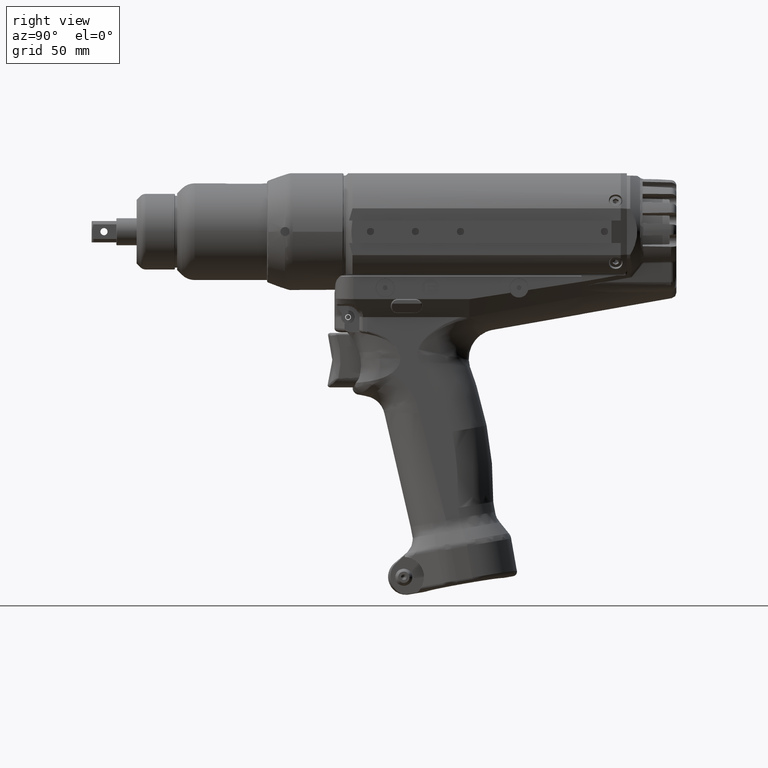
[diagram: clean part render]
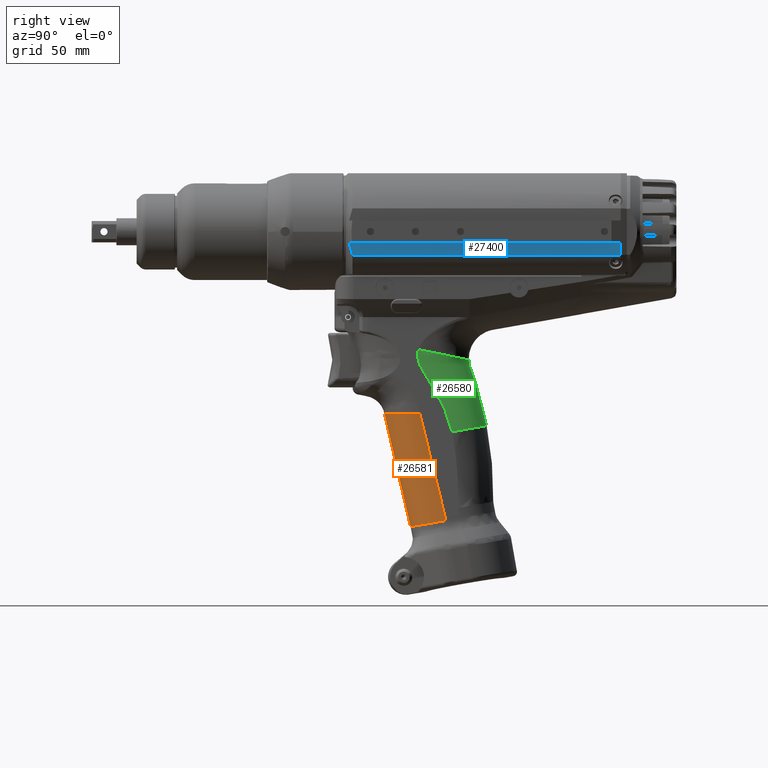
[diagram: same view with three faces highlighted in distinct colors, each labeled with its STEP entity id]
A machine part, right view with three faces highlighted in distinct colors.
Their STEP definitions:

[orange] entity #26581 — the highlighted face is a freeform B-spline surface patch.
#2268=B_SPLINE_SURFACE_WITH_KNOTS('',3,3,((#49000,#49001,#49002,#49003,
#49004,#49005,#49006,#49007,#49008,#49009),(#49010,#49011,#49012,#49013,
#49014,#49015,#49016,#49017,#49018,#49019),(#49020,#49021,#49022,#49023,
#49024,#49025,#49026,#49027,#49028,#49029),(#49030,#49031,#49032,#49033,
#49034,#49035,#49036,#49037,#49038,#49039)),.UNSPECIFIED.,.F.,.F.,.F.,(4,
4),(4,1,1,1,1,1,1,4),(6.18932721384576,59.3048513845876),(0.,1.,2.,3.,4.,
5.,6.,6.98580711094933),.UNSPECIFIED.);
#2790=FACE_OUTER_BOUND('',#4282,.T.);
#4282=EDGE_LOOP('',(#18154,#18155,#18156,#18157,#18158));
#5933=B_SPLINE_CURVE_WITH_KNOTS('',3,(#42523,#42524,#42525,#42526,#42527,
#42528,#42529,#42530,#42531,#42532),.UNSPECIFIED.,.F.,.F.,(4,3,3,4),(-6.48301901123684,
-4.86226425828379,-3.24150950533072,0.),.UNSPECIFIED.);
#6022=B_SPLINE_CURVE_WITH_KNOTS('',3,(#47385,#47386,#47387,#47388,#47389,
#47390,#47391,#47392,#47393,#47394,#47395,#47396,#47397,#47398,#47399,#47400,
#47401,#47402,#47403,#47404,#47405,#47406,#47407,#47408,#47409,#47410,#47411,
#47412,#47413,#47414,#47415),.UNSPECIFIED.,.F.,.F.,(4,3,3,3,3,3,3,3,3,3,
4),(-19.4136932267682,-16.9869815734223,-14.5602699200763,-13.3469140934034,
-12.1335582667304,-9.7068466133845,-7.28013496003857,-6.06677913336561,
-4.85342330669265,-2.42671165334672,-0.310536262625408),.UNSPECIFIED.);
#6033=B_SPLINE_CURVE_WITH_KNOTS('',3,(#48493,#48494,#48495,#48496,#48497,
#48498,#48499,#48500,#48501,#48502,#48503,#48504,#48505,#48506,#48507,#48508,
#48509,#48510,#48511,#48512,#48513,#48514,#48515,#48516,#48517,#48518,#48519,
#48520),.UNSPECIFIED.,.F.,.F.,(4,3,3,3,3,3,3,3,3,4),(-23.9684616606429,
-21.2322941278046,-19.715701690104,-18.1991092524035,-15.1659243770024,
-12.1327395016012,-9.09955462620011,-6.06636975079899,-3.03318487539785,
0.),.UNSPECIFIED.);
#6037=B_SPLINE_CURVE_WITH_KNOTS('',3,(#49040,#49041,#49042,#49043,#49044,
#49045,#49046),.UNSPECIFIED.,.F.,.F.,(4,3,4),(-51.8323816279323,-8.32192835380557,
-0.015886336177395),.UNSPECIFIED.);
#7196=LINE('',#44803,#8749);
#8749=VECTOR('',#31419,10.);
#10587=VERTEX_POINT('',#42328);
#10595=VERTEX_POINT('',#42522);
#10645=VERTEX_POINT('',#44741);
#10684=VERTEX_POINT('',#47384);
#10697=VERTEX_POINT('',#48486);
#13411=EDGE_CURVE('',#10587,#10595,#5933,.T.);
#13480=EDGE_CURVE('',#10645,#10587,#7196,.T.);
#13545=EDGE_CURVE('',#10595,#10684,#6022,.T.);
#13568=EDGE_CURVE('',#10697,#10645,#6033,.T.);
#13572=EDGE_CURVE('',#10697,#10684,#6037,.T.);
#18154=ORIENTED_EDGE('',*,*,#13572,.T.);
#18155=ORIENTED_EDGE('',*,*,#13545,.F.);
#18156=ORIENTED_EDGE('',*,*,#13411,.F.);
#18157=ORIENTED_EDGE('',*,*,#13480,.F.);
#18158=ORIENTED_EDGE('',*,*,#13568,.F.);
#26581=ADVANCED_FACE('',(#2790),#2268,.F.);
#31419=DIRECTION('',(0.0105560679108472,0.23820207209503,-0.971158247805112));
#42328=CARTESIAN_POINT('',(15.9825582871778,137.56783920862,-128.395362420582));
#42522=CARTESIAN_POINT('',(14.7580043873871,131.420744753785,-129.479388351292));
#42523=CARTESIAN_POINT('Ctrl Pts',(15.982558287175,137.56783920862,-128.395362420582));
#42524=CARTESIAN_POINT('Ctrl Pts',(15.9836179425201,137.04231765315,-128.48802604962));
#42525=CARTESIAN_POINT('Ctrl Pts',(15.9593946880316,136.51675699678,-128.580704521699));
#42526=CARTESIAN_POINT('Ctrl Pts',(15.9097596218973,135.99352375774,-128.672976584782));
#42527=CARTESIAN_POINT('Ctrl Pts',(15.8601245557629,135.470290518701,-128.765248647864));
#42528=CARTESIAN_POINT('Ctrl Pts',(15.7849338151475,134.94938256942,-128.857114679171));
#42529=CARTESIAN_POINT('Ctrl Pts',(15.6835244767369,134.43344322011,-128.948104616164));
#42530=CARTESIAN_POINT('Ctrl Pts',(15.4807057999517,133.401564521674,-129.130084490118));
#42531=CARTESIAN_POINT('Ctrl Pts',(15.1700841761262,132.39026535769,-129.308435671873));
#42532=CARTESIAN_POINT('Ctrl Pts',(14.7580043874603,131.420744753957,-129.479388351263));
#44741=CARTESIAN_POINT('',(15.4639503978983,125.865236035306,-80.6834366065205));
#44803=CARTESIAN_POINT('',(15.4639503978983,125.865236035306,-80.6834366065205));
#47384=CARTESIAN_POINT('',(0.299999986565637,121.818883364401,-131.172330684969));
#47385=CARTESIAN_POINT('Ctrl Pts',(14.7580043872409,131.42074475344,-129.479388351351));
#47386=CARTESIAN_POINT('Ctrl Pts',(14.4564132780039,130.710704199285,-129.604583011414));
#47387=CARTESIAN_POINT('Ctrl Pts',(14.1010899634867,130.022795701002,-129.725874959367));
#47388=CARTESIAN_POINT('Ctrl Pts',(13.6966438285991,129.364198842186,-129.841998297377));
#47389=CARTESIAN_POINT('Ctrl Pts',(13.2921976937114,128.70560198337,-129.958121635387));
#47390=CARTESIAN_POINT('Ctrl Pts',(12.8387343871392,128.076190164966,-130.069098686406));
#47391=CARTESIAN_POINT('Ctrl Pts',(12.3399946881338,127.483548122102,-130.173592109945));
#47392=CARTESIAN_POINT('Ctrl Pts',(12.0906248386312,127.18722710067,-130.225838821715));
#47393=CARTESIAN_POINT('Ctrl Pts',(11.8301928924037,126.900054256253,-130.276472433429));
#47394=CARTESIAN_POINT('Ctrl Pts',(11.5592106494204,126.622739186845,-130.325367829726));
#47395=CARTESIAN_POINT('Ctrl Pts',(11.288228406437,126.345424117437,-130.374263226023));
#47396=CARTESIAN_POINT('Ctrl Pts',(11.0069441553658,126.07794213954,-130.421424760657));
#47397=CARTESIAN_POINT('Ctrl Pts',(10.7159982363612,125.821032710089,-130.466722054396));
#47398=CARTESIAN_POINT('Ctrl Pts',(10.1341063983519,125.307213851186,-130.557316641874));
#47399=CARTESIAN_POINT('Ctrl Pts',(9.51346485173847,124.836019031778,-130.640395400639));
#47400=CARTESIAN_POINT('Ctrl Pts',(8.86098497463106,124.412307295903,-130.715101611402));
#47401=CARTESIAN_POINT('Ctrl Pts',(8.20850509752364,123.988595560027,-130.789807822164));
#47402=CARTESIAN_POINT('Ctrl Pts',(7.52440136805793,123.612218244593,-130.856167698885));
#47403=CARTESIAN_POINT('Ctrl Pts',(6.81598706661467,123.287086403167,-130.913491676911));
#47404=CARTESIAN_POINT('Ctrl Pts',(6.46177991589304,123.124520482454,-130.942153665924));
#47405=CARTESIAN_POINT('Ctrl Pts',(6.10157030157636,122.974790792942,-130.96855229687));
#47406=CARTESIAN_POINT('Ctrl Pts',(5.7361897840397,122.838267466812,-130.992622311816));
#47407=CARTESIAN_POINT('Ctrl Pts',(5.37080926650304,122.701744140682,-131.016692326763));
#47408=CARTESIAN_POINT('Ctrl Pts',(5.00032794004954,122.578540580415,-131.038413730641));
#47409=CARTESIAN_POINT('Ctrl Pts',(4.62576113898575,122.468944714023,-131.057735761122));
#47410=CARTESIAN_POINT('Ctrl Pts',(3.87662753685817,122.249752981239,-131.096379822086));
#47411=CARTESIAN_POINT('Ctrl Pts',(3.1106772334413,122.085988801865,-131.125250631912));
#47412=CARTESIAN_POINT('Ctrl Pts',(2.33692256675379,121.977917964722,-131.144301380163));
#47413=CARTESIAN_POINT('Ctrl Pts',(1.66218208745448,121.883676506037,-131.160914282882));
#47414=CARTESIAN_POINT('Ctrl Pts',(0.981404978026226,121.830928268565,-131.170210941981));
#47415=CARTESIAN_POINT('Ctrl Pts',(0.29999997322206,121.818883724865,-131.17233060175));
#48486=CARTESIAN_POINT('',(0.299999864935906,110.162062187546,-80.6834273257872));
#48493=CARTESIAN_POINT('Ctrl Pts',(0.299999864935906,110.162062187546,-80.6834273257872));
#48494=CARTESIAN_POINT('Ctrl Pts',(1.22119265919352,110.177138749751,-80.6834276602243));
#48495=CARTESIAN_POINT('Ctrl Pts',(2.14163923726857,110.267942099335,-80.6834278991349));
#48496=CARTESIAN_POINT('Ctrl Pts',(3.04619781146866,110.443339721386,-80.6834280686938));
#48497=CARTESIAN_POINT('Ctrl Pts',(3.54757306595317,110.540558442097,-80.6834281626763));
#48498=CARTESIAN_POINT('Ctrl Pts',(4.04377836317919,110.664388196257,-80.6834282348273));
#48499=CARTESIAN_POINT('Ctrl Pts',(4.53205493434953,110.81384066634,-80.6834282918093));
#48500=CARTESIAN_POINT('Ctrl Pts',(5.02033150551987,110.963293136422,-80.6834283487914));
#48501=CARTESIAN_POINT('Ctrl Pts',(5.5009676226065,111.13817230396,-80.6834283911004));
#48502=CARTESIAN_POINT('Ctrl Pts',(5.97137758340928,111.336897953607,-80.6834284257209));
#48503=CARTESIAN_POINT('Ctrl Pts',(6.91219750501482,111.734349252901,-80.6834284949621));
#48504=CARTESIAN_POINT('Ctrl Pts',(7.81296904428305,112.226746803236,-80.6834285346034));
#48505=CARTESIAN_POINT('Ctrl Pts',(8.65566306731196,112.803889079288,-80.6834285958999));
#48506=CARTESIAN_POINT('Ctrl Pts',(9.49835709034089,113.38103135534,-80.6834286571964));
#48507=CARTESIAN_POINT('Ctrl Pts',(10.2821579216292,114.043821948717,-80.6834287396975));
#48508=CARTESIAN_POINT('Ctrl Pts',(10.9940374471896,114.776180912577,-80.6834288940532));
#48509=CARTESIAN_POINT('Ctrl Pts',(11.7059169727499,115.508539876437,-80.683429048409));
#48510=CARTESIAN_POINT('Ctrl Pts',(12.3455356181498,116.311194721754,-80.6834292744782));
#48511=CARTESIAN_POINT('Ctrl Pts',(12.9005609593443,117.168634052617,-80.6834296151552));
#48512=CARTESIAN_POINT('Ctrl Pts',(13.4555863005388,118.026073383479,-80.6834299558323));
#48513=CARTESIAN_POINT('Ctrl Pts',(13.9281019868943,118.936779035087,-80.6834304122799));
#48514=CARTESIAN_POINT('Ctrl Pts',(14.3093168097327,119.884395087229,-80.6834310181497));
#48515=CARTESIAN_POINT('Ctrl Pts',(14.690531632571,120.832011139371,-80.6834316240195));
#48516=CARTESIAN_POINT('Ctrl Pts',(14.9791245019431,121.816689511693,-80.6834323795946));
#48517=CARTESIAN_POINT('Ctrl Pts',(15.1719144158077,122.819684516162,-80.6834333064905));
#48518=CARTESIAN_POINT('Ctrl Pts',(15.364704329672,123.822679520629,-80.6834342333863));
#48519=CARTESIAN_POINT('Ctrl Pts',(15.4637990304035,124.843856271045,-80.6834353315417));
#48520=CARTESIAN_POINT('Ctrl Pts',(15.4639503978983,125.865236035306,-80.6834366065201));
#49000=CARTESIAN_POINT('Ctrl Pts',(15.4314594744026,125.132064804669,-77.6942716449368));
#49001=CARTESIAN_POINT('Ctrl Pts',(15.433561842498,123.998118751059,-77.8876895097136));
#49002=CARTESIAN_POINT('Ctrl Pts',(15.1679206120768,121.711344763125,-78.276035536444));
#49003=CARTESIAN_POINT('Ctrl Pts',(14.0297554434304,118.5203420211,-78.8135498505691));
#49004=CARTESIAN_POINT('Ctrl Pts',(12.1715831929763,115.605345644869,-79.2996621685889));
#49005=CARTESIAN_POINT('Ctrl Pts',(9.6701386326624,113.166211357487,-79.7007310331564));
#49006=CARTESIAN_POINT('Ctrl Pts',(6.72762038053957,111.376932785556,-79.9885858677609));
#49007=CARTESIAN_POINT('Ctrl Pts',(3.47426618170764,110.272364011691,-80.1578291050225));
#49008=CARTESIAN_POINT('Ctrl Pts',(1.18087065599422,110.045844881713,-80.1829956592748));
#49009=CARTESIAN_POINT('Ctrl Pts',(0.0488880631524969,110.042860328665,
-80.1768412995748));
#49010=CARTESIAN_POINT('Ctrl Pts',(15.6210933346677,129.411231899441,-95.1405867893321));
#49011=CARTESIAN_POINT('Ctrl Pts',(15.6230302236222,128.256820541898,-95.3187805731417));
#49012=CARTESIAN_POINT('Ctrl Pts',(15.3627156754217,125.927485011103,-95.6716050561516));
#49013=CARTESIAN_POINT('Ctrl Pts',(14.2152537135964,122.671714144473,-96.1481023922062));
#49014=CARTESIAN_POINT('Ctrl Pts',(12.3369560272959,119.695376717003,-96.5650954123669));
#49015=CARTESIAN_POINT('Ctrl Pts',(9.80693994291988,117.20093399807,-96.8930978409875));
#49016=CARTESIAN_POINT('Ctrl Pts',(6.8247828451491,115.362682439395,-97.1106655846705));
#49017=CARTESIAN_POINT('Ctrl Pts',(3.5252751148459,114.220563723143,-97.2139046381532));
#49018=CARTESIAN_POINT('Ctrl Pts',(1.19849471066287,113.976534674125,-97.2002597254632));
#49019=CARTESIAN_POINT('Ctrl Pts',(0.0496179493162189,113.967568340911,
-97.1762767400641));
#49020=CARTESIAN_POINT('Ctrl Pts',(15.8107287195955,133.690433398843,-112.587042202641));
#49021=CARTESIAN_POINT('Ctrl Pts',(15.812501568073,132.514264078167,-112.750144262572));
#49022=CARTESIAN_POINT('Ctrl Pts',(15.5557196069803,130.141487800437,-113.067561297025));
#49023=CARTESIAN_POINT('Ctrl Pts',(14.394150968327,126.813887276112,-113.483472554788));
#49024=CARTESIAN_POINT('Ctrl Pts',(12.4940308752058,123.78076003112,-113.830833089394));
#49025=CARTESIAN_POINT('Ctrl Pts',(9.94515068078317,121.241044008171,-114.085537223452));
#49026=CARTESIAN_POINT('Ctrl Pts',(6.92139778519224,119.350126450284,-114.232966606496));
#49027=CARTESIAN_POINT('Ctrl Pts',(3.57393511686094,118.170974381462,-114.26989869948));
#49028=CARTESIAN_POINT('Ctrl Pts',(1.21573223276537,117.905714399368,-114.217843945491));
#49029=CARTESIAN_POINT('Ctrl Pts',(0.0503321952917459,117.892242084367,
-114.175856672276));
#49030=CARTESIAN_POINT('Ctrl Pts',(16.0003637013329,137.96962580009,-130.033460522445));
#49031=CARTESIAN_POINT('Ctrl Pts',(16.0019712146189,136.77134572308,-130.181351744753));
#49032=CARTESIAN_POINT('Ctrl Pts',(15.7502254994935,134.35449017358,-130.463600680171));
#49033=CARTESIAN_POINT('Ctrl Pts',(14.5760126653354,130.95500817772,-130.818662812572));
#49034=CARTESIAN_POINT('Ctrl Pts',(12.6546750740438,127.86414133154,-131.096649539636));
#49035=CARTESIAN_POINT('Ctrl Pts',(10.085698691626,125.27811688381,-131.278740149826));
#49036=CARTESIAN_POINT('Ctrl Pts',(7.02017381899577,123.33534941197,-131.35572721669));
#49037=CARTESIAN_POINT('Ctrl Pts',(3.62412924527971,122.119889679581,-131.326162407783));
#49038=CARTESIAN_POINT('Ctrl Pts',(1.23349146811626,121.834611585261,-131.23540769398));
#49039=CARTESIAN_POINT('Ctrl Pts',(0.0510680400675933,121.816896334802,
-131.175401034218));
#49040=CARTESIAN_POINT('Ctrl Pts',(0.299999476740887,110.162047485856,-80.6834307179722));
#49041=CARTESIAN_POINT('Ctrl Pts',(0.299999951577888,113.42504467527,-94.8153996615566));
#49042=CARTESIAN_POINT('Ctrl Pts',(0.29999859502052,116.687784985857,-108.947344672117));
#49043=CARTESIAN_POINT('Ctrl Pts',(0.299999634393999,119.950411695777,-123.079157733855));
#49044=CARTESIAN_POINT('Ctrl Pts',(0.299999832807923,120.573239372834,-125.776887227422));
#49045=CARTESIAN_POINT('Ctrl Pts',(0.299999997105858,121.196062841449,-128.474611851533));
#49046=CARTESIAN_POINT('Ctrl Pts',(0.2999999864768,121.818883004271,-131.172330768112));

[blue] entity #27400 — the highlighted planar face has unit normal (1, -0, 0).
#1540=(
BOUNDED_CURVE()
B_SPLINE_CURVE(2,(#73259,#73260,#73261),.UNSPECIFIED.,.F.,.F.)
B_SPLINE_CURVE_WITH_KNOTS((3,3),(3.13259549620399,3.76754975221742),
 .UNSPECIFIED.)
CURVE()
GEOMETRIC_REPRESENTATION_ITEM()
RATIONAL_B_SPLINE_CURVE((1.16242719898379,1.15156642127415,1.12962962962963))
REPRESENTATION_ITEM('')
);
#2017=PLANE('',#29635);
#3609=FACE_OUTER_BOUND('',#5165,.T.);
#5165=EDGE_LOOP('',(#22638,#22639,#22640,#22641));
#8040=LINE('',#73214,#9593);
#8042=LINE('',#73256,#9595);
#8043=LINE('',#73258,#9596);
#9593=VECTOR('',#34967,10.);
#9595=VECTOR('',#34975,10.);
#9596=VECTOR('',#34976,10.);
#12126=VERTEX_POINT('',#73211);
#12127=VERTEX_POINT('',#73213);
#12132=VERTEX_POINT('',#73255);
#12133=VERTEX_POINT('',#73257);
#15809=EDGE_CURVE('',#12127,#12126,#8040,.T.);
#15815=EDGE_CURVE('',#12126,#12132,#8042,.T.);
#15816=EDGE_CURVE('',#12133,#12132,#8043,.T.);
#15817=EDGE_CURVE('',#12133,#12127,#1540,.T.);
#22638=ORIENTED_EDGE('',*,*,#15815,.T.);
#22639=ORIENTED_EDGE('',*,*,#15816,.F.);
#22640=ORIENTED_EDGE('',*,*,#15817,.T.);
#22641=ORIENTED_EDGE('',*,*,#15809,.T.);
#27400=ADVANCED_FACE('',(#3609),#2017,.T.);
#29635=AXIS2_PLACEMENT_3D('',#73254,#34973,#34974);
#34967=DIRECTION('',(2.20483306713371E-17,1.,2.35171747994582E-17));
#34973=DIRECTION('center_axis',(1.,-2.20483306713371E-17,0.));
#34974=DIRECTION('ref_axis',(0.,2.35171747994582E-17,-1.));
#34975=DIRECTION('',(0.,-2.35171747994582E-17,1.));
#34976=DIRECTION('',(2.20483306713371E-17,1.,2.35171747994582E-17));
#73211=CARTESIAN_POINT('',(26.,215.252522580545,-10.3923048454133));
#73213=CARTESIAN_POINT('',(26.,96.,-10.3923048454133));
#73214=CARTESIAN_POINT('',(26.,80.5,-10.3923048454133));
#73254=CARTESIAN_POINT('Origin',(26.,80.5,-5.00000000000001));
#73255=CARTESIAN_POINT('',(26.,215.252522580545,-5.));
#73256=CARTESIAN_POINT('',(26.,215.252522580545,-2.5));
#73257=CARTESIAN_POINT('',(26.,94.4764045897475,-5.00000000000001));
#73258=CARTESIAN_POINT('',(26.,80.5,-5.00000000000001));
#73259=CARTESIAN_POINT('Ctrl Pts',(26.,94.4764045897475,-5.00000000000001));
#73260=CARTESIAN_POINT('Ctrl Pts',(26.,94.9713257290941,-7.62074646507204));
#73261=CARTESIAN_POINT('Ctrl Pts',(26.,96.,-10.3923048454133));

[green] entity #26580 — the highlighted face is a freeform B-spline surface patch.
#2267=B_SPLINE_SURFACE_WITH_KNOTS('',3,3,((#48670,#48671,#48672,#48673,
#48674,#48675,#48676,#48677,#48678,#48679),(#48680,#48681,#48682,#48683,
#48684,#48685,#48686,#48687,#48688,#48689),(#48690,#48691,#48692,#48693,
#48694,#48695,#48696,#48697,#48698,#48699),(#48700,#48701,#48702,#48703,
#48704,#48705,#48706,#48707,#48708,#48709),(#48710,#48711,#48712,#48713,
#48714,#48715,#48716,#48717,#48718,#48719),(#48720,#48721,#48722,#48723,
#48724,#48725,#48726,#48727,#48728,#48729),(#48730,#48731,#48732,#48733,
#48734,#48735,#48736,#48737,#48738,#48739),(#48740,#48741,#48742,#48743,
#48744,#48745,#48746,#48747,#48748,#48749),(#48750,#48751,#48752,#48753,
#48754,#48755,#48756,#48757,#48758,#48759),(#48760,#48761,#48762,#48763,
#48764,#48765,#48766,#48767,#48768,#48769),(#48770,#48771,#48772,#48773,
#48774,#48775,#48776,#48777,#48778,#48779),(#48780,#48781,#48782,#48783,
#48784,#48785,#48786,#48787,#48788,#48789),(#48790,#48791,#48792,#48793,
#48794,#48795,#48796,#48797,#48798,#48799),(#48800,#48801,#48802,#48803,
#48804,#48805,#48806,#48807,#48808,#48809),(#48810,#48811,#48812,#48813,
#48814,#48815,#48816,#48817,#48818,#48819),(#48820,#48821,#48822,#48823,
#48824,#48825,#48826,#48827,#48828,#48829),(#48830,#48831,#48832,#48833,
#48834,#48835,#48836,#48837,#48838,#48839),(#48840,#48841,#48842,#48843,
#48844,#48845,#48846,#48847,#48848,#48849),(#48850,#48851,#48852,#48853,
#48854,#48855,#48856,#48857,#48858,#48859),(#48860,#48861,#48862,#48863,
#48864,#48865,#48866,#48867,#48868,#48869),(#48870,#48871,#48872,#48873,
#48874,#48875,#48876,#48877,#48878,#48879),(#48880,#48881,#48882,#48883,
#48884,#48885,#48886,#48887,#48888,#48889),(#48890,#48891,#48892,#48893,
#48894,#48895,#48896,#48897,#48898,#48899),(#48900,#48901,#48902,#48903,
#48904,#48905,#48906,#48907,#48908,#48909),(#48910,#48911,#48912,#48913,
#48914,#48915,#48916,#48917,#48918,#48919),(#48920,#48921,#48922,#48923,
#48924,#48925,#48926,#48927,#48928,#48929),(#48930,#48931,#48932,#48933,
#48934,#48935,#48936,#48937,#48938,#48939),(#48940,#48941,#48942,#48943,
#48944,#48945,#48946,#48947,#48948,#48949),(#48950,#48951,#48952,#48953,
#48954,#48955,#48956,#48957,#48958,#48959),(#48960,#48961,#48962,#48963,
#48964,#48965,#48966,#48967,#48968,#48969),(#48970,#48971,#48972,#48973,
#48974,#48975,#48976,#48977,#48978,#48979),(#48980,#48981,#48982,#48983,
#48984,#48985,#48986,#48987,#48988,#48989)),.UNSPECIFIED.,.F.,.F.,.F.,(4,
2,2,2,2,2,2,2,2,2,2,2,2,2,2,4),(4,1,1,1,1,1,1,4),(0.,4.41197645880191,8.82395291760381,
13.2359293764057,17.6479058352076,22.0598822940095,24.2658705234105,26.4718587528114,
28.6778469822124,29.7808410969129,30.3323381542631,30.8838352116133,31.9868293263138,
33.0898234410143,34.1928175557148,35.2958357630949),(-5.28786258886457E-6,
1.,2.,3.,4.,5.,6.,7.),.UNSPECIFIED.);
#2789=FACE_OUTER_BOUND('',#4281,.T.);
#4281=EDGE_LOOP('',(#18149,#18150,#18151,#18152,#18153));
#5923=B_SPLINE_CURVE_WITH_KNOTS('',3,(#42141,#42142,#42143,#42144,#42145,
#42146,#42147,#42148,#42149,#42150,#42151,#42152,#42153,#42154,#42155,#42156,
#42157,#42158,#42159,#42160),.UNSPECIFIED.,.F.,.F.,(4,2,2,2,2,2,2,2,2,4),
(-6.8546789309067,-5.12935180490891,-4.41880186751197,-4.03366518010407,
-3.64852849269617,-3.14006944780411,-2.63161040291204,-1.77138653259447,
-0.918040733133623,0.),.UNSPECIFIED.);
#5990=B_SPLINE_CURVE_WITH_KNOTS('',3,(#44819,#44820,#44821,#44822,#44823,
#44824,#44825,#44826,#44827,#44828,#44829,#44830,#44831,#44832,#44833,#44834,
#44835,#44836,#44837,#44838),.UNSPECIFIED.,.F.,.F.,(4,2,2,2,2,2,2,2,2,4),
(2.41384233712228E-8,4.41197645880191,8.82395291760381,13.2359293764057,
17.6479058352076,22.0598822940095,24.2658705234105,26.4718587528114,28.6778469822124,
29.2621880037137),.UNSPECIFIED.);
#6007=B_SPLINE_CURVE_WITH_KNOTS('',3,(#46015,#46016,#46017,#46018,#46019,
#46020,#46021,#46022,#46023,#46024,#46025,#46026,#46027,#46028,#46029,#46030,
#46031,#46032,#46033,#46034,#46035,#46036,#46037,#46038,#46039,#46040,#46041,
#46042,#46043,#46044,#46045,#46046,#46047,#46048,#46049,#46050,#46051),
 .UNSPECIFIED.,.F.,.F.,(4,3,3,3,3,3,3,3,3,3,3,3,4),(0.0480513549656024,
3.07447194330146,4.6117079150337,6.14894388676594,9.22341583023041,12.2978877736949,
15.3723597171594,16.9095956888917,18.4468316606238,19.9840676323561,21.5213036040883,
23.0585395758206,24.3561840656064),.UNSPECIFIED.);
#6035=B_SPLINE_CURVE_WITH_KNOTS('',3,(#48648,#48649,#48650,#48651,#48652,
#48653,#48654,#48655,#48656,#48657,#48658,#48659,#48660,#48661,#48662,#48663,
#48664,#48665,#48666,#48667,#48668,#48669),.UNSPECIFIED.,.F.,.F.,(4,3,3,
3,3,3,3,4),(-6.91446055901153,-6.000005313668,-5.00001103419731,-4.00001536112901,
-3.00001686245994,-2.00001493082698,-1.00000920455593,0.),.UNSPECIFIED.);
#6036=B_SPLINE_CURVE_WITH_KNOTS('',3,(#48990,#48991,#48992,#48993,#48994,
#48995,#48996,#48997,#48998,#48999),.UNSPECIFIED.,.F.,.F.,(4,2,2,2,4),(2.59831827777823E-10,
1.52395814287799,2.28240439576014,2.92242067351702,4.41609453814139),
 .UNSPECIFIED.);
#10495=VERTEX_POINT('',#41184);
#10580=VERTEX_POINT('',#42124);
#10647=VERTEX_POINT('',#44806);
#10673=VERTEX_POINT('',#46014);
#10698=VERTEX_POINT('',#48641);
#13393=EDGE_CURVE('',#10580,#10495,#5923,.T.);
#13483=EDGE_CURVE('',#10647,#10580,#5990,.T.);
#13527=EDGE_CURVE('',#10495,#10673,#6007,.T.);
#13570=EDGE_CURVE('',#10698,#10647,#6035,.T.);
#13571=EDGE_CURVE('',#10698,#10673,#6036,.T.);
#18149=ORIENTED_EDGE('',*,*,#13527,.F.);
#18150=ORIENTED_EDGE('',*,*,#13393,.F.);
#18151=ORIENTED_EDGE('',*,*,#13483,.F.);
#18152=ORIENTED_EDGE('',*,*,#13570,.F.);
#18153=ORIENTED_EDGE('',*,*,#13571,.T.);
#26580=ADVANCED_FACE('',(#2789),#2267,.F.);
#41184=CARTESIAN_POINT('',(15.1538950371381,125.28560082875,-52.3735795472021));
#42124=CARTESIAN_POINT('',(15.2291780243094,125.775799653277,-59.0837872268992));
#42141=CARTESIAN_POINT('Ctrl Pts',(15.2291780243094,125.775799653277,-59.0837872268992));
#42142=CARTESIAN_POINT('Ctrl Pts',(15.2228336804988,125.542544384203,-58.5001559576342));
#42143=CARTESIAN_POINT('Ctrl Pts',(15.2149178749372,125.44270677713,-57.9716022056498));
#42144=CARTESIAN_POINT('Ctrl Pts',(15.2065027086334,125.223902265032,-57.1999555375353));
#42145=CARTESIAN_POINT('Ctrl Pts',(15.2035360135602,125.127436008383,-56.8766004002655));
#42146=CARTESIAN_POINT('Ctrl Pts',(15.1987135318331,125.038481266514,-56.4280919957255));
#42147=CARTESIAN_POINT('Ctrl Pts',(15.1970729733812,125.02169168003,-56.2939976711563));
#42148=CARTESIAN_POINT('Ctrl Pts',(15.1937251540071,124.99276155019,-56.0227400230662));
#42149=CARTESIAN_POINT('Ctrl Pts',(15.1921596396433,124.977277706316,-55.8850467700421));
#42150=CARTESIAN_POINT('Ctrl Pts',(15.1889068370211,124.938453080355,-55.5631014729656));
#42151=CARTESIAN_POINT('Ctrl Pts',(15.1870621017011,124.921433520386,-55.3763947434265));
#42152=CARTESIAN_POINT('Ctrl Pts',(15.184174263866,124.91467520509,-55.1246848743083));
#42153=CARTESIAN_POINT('Ctrl Pts',(15.182971676442,124.917776757873,-55.0320556784069));
#42154=CARTESIAN_POINT('Ctrl Pts',(15.1792172898816,124.921932858076,-54.7083587997986));
#42155=CARTESIAN_POINT('Ctrl Pts',(15.1758593720655,124.921152138825,-54.3652941013597));
#42156=CARTESIAN_POINT('Ctrl Pts',(15.1695995084683,124.967077030994,-53.7535328883022));
#42157=CARTESIAN_POINT('Ctrl Pts',(15.1664291137852,125.011215605194,-53.454265004044));
#42158=CARTESIAN_POINT('Ctrl Pts',(15.1606223119805,125.117513534487,-52.9296781164042));
#42159=CARTESIAN_POINT('Ctrl Pts',(15.1577615231876,125.181748158654,-52.6802264183385));
#42160=CARTESIAN_POINT('Ctrl Pts',(15.1538952108905,125.285600834716,-52.3735795493051));
#44806=CARTESIAN_POINT('',(15.5532677122156,140.221767082648,-88.931344681568));
#44819=CARTESIAN_POINT('Ctrl Pts',(15.5532677118705,140.22176707788,-88.9313446501061));
#44820=CARTESIAN_POINT('Ctrl Pts',(15.5353982433867,139.895841690867,-87.2858211063208));
#44821=CARTESIAN_POINT('Ctrl Pts',(15.5177118682619,139.485257744232,-85.6571216324841));
#44822=CARTESIAN_POINT('Ctrl Pts',(15.4828989067345,138.495522434228,-82.4511976670698));
#44823=CARTESIAN_POINT('Ctrl Pts',(15.4657810316532,137.916305799948,-80.8747752718458));
#44824=CARTESIAN_POINT('Ctrl Pts',(15.4322504418459,136.604277135697,-77.7867971918714));
#44825=CARTESIAN_POINT('Ctrl Pts',(15.4158452190023,135.871549517319,-76.2759313812835));
#44826=CARTESIAN_POINT('Ctrl Pts',(15.3837424641826,134.285569618483,-73.3193130879153));
#44827=CARTESIAN_POINT('Ctrl Pts',(15.36805058494,133.432237967849,-71.8740810662735));
#44828=CARTESIAN_POINT('Ctrl Pts',(15.3371405011079,131.657104658542,-69.0272039733823));
#44829=CARTESIAN_POINT('Ctrl Pts',(15.3219261822979,130.73420831605,-67.6259162473224));
#44830=CARTESIAN_POINT('Ctrl Pts',(15.2990416176779,129.360205309485,-65.5181800291071));
#44831=CARTESIAN_POINT('Ctrl Pts',(15.2913953972263,128.904254695555,-64.813941756096));
#44832=CARTESIAN_POINT('Ctrl Pts',(15.2759562371504,128.014439672207,-63.3919646562554));
#44833=CARTESIAN_POINT('Ctrl Pts',(15.2681628442098,127.579952214704,-62.6741838323976));
#44834=CARTESIAN_POINT('Ctrl Pts',(15.2522765061432,126.759674367623,-61.2110599877243));
#44835=CARTESIAN_POINT('Ctrl Pts',(15.2441759205795,126.374086318402,-60.4650135320625));
#44836=CARTESIAN_POINT('Ctrl Pts',(15.2336406219395,125.944690074524,-59.494764924755));
#44837=CARTESIAN_POINT('Ctrl Pts',(15.2314179803503,125.858248684069,-59.2900723963737));
#44838=CARTESIAN_POINT('Ctrl Pts',(15.2291780246534,125.775799665924,-59.0837872585447));
#46014=CARTESIAN_POINT('',(0.299999999998255,147.689347845302,-56.9993862263121));
#46015=CARTESIAN_POINT('Ctrl Pts',(15.1538946896334,125.285600816819,-52.3735795429962));
#46016=CARTESIAN_POINT('Ctrl Pts',(15.106958560914,126.521803510833,-52.6288241091685));
#46017=CARTESIAN_POINT('Ctrl Pts',(15.0543208709372,127.758085913527,-52.8840851375148));
#46018=CARTESIAN_POINT('Ctrl Pts',(14.9588384188398,128.991712070999,-53.1387977259931));
#46019=CARTESIAN_POINT('Ctrl Pts',(14.9103391915351,129.61831846941,-53.2681760929561));
#46020=CARTESIAN_POINT('Ctrl Pts',(14.850302879146,130.24400405445,-53.3973643376032));
#46021=CARTESIAN_POINT('Ctrl Pts',(14.7751147730929,130.86807158666,-53.5262184964636));
#46022=CARTESIAN_POINT('Ctrl Pts',(14.6999266670397,131.49213911887,-53.6550726553241));
#46023=CARTESIAN_POINT('Ctrl Pts',(14.609668734928,132.11445721561,-53.7835656010461));
#46024=CARTESIAN_POINT('Ctrl Pts',(14.5013963567271,132.733766036697,-53.9114372071174));
#46025=CARTESIAN_POINT('Ctrl Pts',(14.2848516003251,133.97238367887,-54.1671804192601));
#46026=CARTESIAN_POINT('Ctrl Pts',(13.9965777097578,135.1998002917,-54.4206108996131));
#46027=CARTESIAN_POINT('Ctrl Pts',(13.6195606702288,136.40094495446,-54.6686168758011));
#46028=CARTESIAN_POINT('Ctrl Pts',(13.2425436306997,137.60208961722,-54.9166228519891));
#46029=CARTESIAN_POINT('Ctrl Pts',(12.7768639956244,138.77817602042,-55.1594549193551));
#46030=CARTESIAN_POINT('Ctrl Pts',(12.1977867827753,139.899670409235,-55.3910150988886));
#46031=CARTESIAN_POINT('Ctrl Pts',(11.6187095699261,141.02116479805,-55.6225752784221));
#46032=CARTESIAN_POINT('Ctrl Pts',(10.9243016259693,142.08721717446,-55.8426880651522));
#46033=CARTESIAN_POINT('Ctrl Pts',(10.10491587859,143.05480074586,-56.0424695183561));
#46034=CARTESIAN_POINT('Ctrl Pts',(9.6952230049003,143.53859253156,-56.1423602449581));
#46035=CARTESIAN_POINT('Ctrl Pts',(9.25437619014532,143.99700898048,-56.2370116034402));
#46036=CARTESIAN_POINT('Ctrl Pts',(8.78227389543608,144.422559423915,-56.3248769621181));
#46037=CARTESIAN_POINT('Ctrl Pts',(8.31017160072687,144.84810986735,-56.4127423207961));
#46038=CARTESIAN_POINT('Ctrl Pts',(7.8059501872093,145.23953507621,-56.4935616784281));
#46039=CARTESIAN_POINT('Ctrl Pts',(7.27388493607357,145.590758381305,-56.5660803663637));
#46040=CARTESIAN_POINT('Ctrl Pts',(6.74181968493781,145.9419816864,-56.6385990542992));
#46041=CARTESIAN_POINT('Ctrl Pts',(6.18240697260281,146.25353759524,-56.7029274365511));
#46042=CARTESIAN_POINT('Ctrl Pts',(5.60161246455667,146.52063561434,-56.7580764103766));
#46043=CARTESIAN_POINT('Ctrl Pts',(5.02081795651056,146.78773363344,-56.813225384202));
#46044=CARTESIAN_POINT('Ctrl Pts',(4.41855773257798,147.00993660873,-56.859104691048));
#46045=CARTESIAN_POINT('Ctrl Pts',(3.80191843110555,147.18364563627,-56.894971255095));
#46046=CARTESIAN_POINT('Ctrl Pts',(3.18527912963307,147.35735466381,-56.930837819142));
#46047=CARTESIAN_POINT('Ctrl Pts',(2.55514908862059,147.48443924356,-56.957077634442));
#46048=CARTESIAN_POINT('Ctrl Pts',(1.91925252603883,147.568115717455,-56.9743547638436));
#46049=CARTESIAN_POINT('Ctrl Pts',(1.38246592614025,147.638750491342,-56.9889391036453));
#46050=CARTESIAN_POINT('Ctrl Pts',(0.841535571221201,147.678618406084,-56.9971708577022));
#46051=CARTESIAN_POINT('Ctrl Pts',(0.300000000169094,147.689347845299,-56.9993862263131));
#48641=CARTESIAN_POINT('',(0.299999999939363,155.628170149881,-86.2147819495784));
#48648=CARTESIAN_POINT('Ctrl Pts',(0.299999999749053,155.628170149365,-86.2147819472165));
#48649=CARTESIAN_POINT('Ctrl Pts',(1.36938630067342,155.607371696167,-86.2184492063597));
#48650=CARTESIAN_POINT('Ctrl Pts',(2.44133331459733,155.475647201187,-86.2416757508361));
#48651=CARTESIAN_POINT('Ctrl Pts',(3.48297417296913,155.238276743697,-86.2835305524174));
#48652=CARTESIAN_POINT('Ctrl Pts',(4.62205113156148,154.978702422467,-86.329300492896));
#48653=CARTESIAN_POINT('Ctrl Pts',(5.72488685619785,154.592793292524,-86.3973466962417));
#48654=CARTESIAN_POINT('Ctrl Pts',(6.7737568989116,154.087144715303,-86.486506220361));
#48655=CARTESIAN_POINT('Ctrl Pts',(7.8226284033365,153.581495433407,-86.5756658687336));
#48656=CARTESIAN_POINT('Ctrl Pts',(8.81753435071381,152.956106279423,-86.6859389095779));
#48657=CARTESIAN_POINT('Ctrl Pts',(9.72391483929051,152.235477500519,-86.8130052063731));
#48658=CARTESIAN_POINT('Ctrl Pts',(10.6302978889477,151.514846685397,-86.9400718622084));
#48659=CARTESIAN_POINT('Ctrl Pts',(11.4481545861234,150.698975990773,-87.0839318784317));
#48660=CARTESIAN_POINT('Ctrl Pts',(12.1692895640122,149.795944067328,-87.2431607709835));
#48661=CARTESIAN_POINT('Ctrl Pts',(12.8904270175351,148.892909043803,-87.4023902101631));
#48662=CARTESIAN_POINT('Ctrl Pts',(13.5148427241293,147.902711781914,-87.5769887036788));
#48663=CARTESIAN_POINT('Ctrl Pts',(14.0174311858753,146.865616272576,-87.759856623519));
#48664=CARTESIAN_POINT('Ctrl Pts',(14.520021554759,145.828516827844,-87.9427252372754));
#48665=CARTESIAN_POINT('Ctrl Pts',(14.9007829046085,144.744518421319,-88.1338634032784));
#48666=CARTESIAN_POINT('Ctrl Pts',(15.1585037912339,143.628577553125,-88.3306281267391));
#48667=CARTESIAN_POINT('Ctrl Pts',(15.416225574281,142.512632803392,-88.5273935345996));
#48668=CARTESIAN_POINT('Ctrl Pts',(15.5509099204874,141.36474600201,-88.7297854272678));
#48669=CARTESIAN_POINT('Ctrl Pts',(15.5531008010682,140.221767073029,-88.9313464335244));
#48670=CARTESIAN_POINT('Ctrl Pts',(15.5531008364198,140.221748951757,-88.9313496887925));
#48671=CARTESIAN_POINT('Ctrl Pts',(15.5509113779268,141.364716641354,-88.7297906044706));
#48672=CARTESIAN_POINT('Ctrl Pts',(15.281544627779,143.660524947665,-88.3250006995551));
#48673=CARTESIAN_POINT('Ctrl Pts',(14.1392586667953,146.91251476801,-87.7515871534682));
#48674=CARTESIAN_POINT('Ctrl Pts',(12.2660098337051,149.88310788374,-87.227791438395));
#48675=CARTESIAN_POINT('Ctrl Pts',(9.81243938245752,152.330718101,-86.7962117188531));
#48676=CARTESIAN_POINT('Ctrl Pts',(6.82772167220788,154.20688471537,-86.4653929244311));
#48677=CARTESIAN_POINT('Ctrl Pts',(3.51921532324795,155.36461144028,-86.2612544665441));
#48678=CARTESIAN_POINT('Ctrl Pts',(1.16857982319362,155.63109056687,-86.21426699417));
#48679=CARTESIAN_POINT('Ctrl Pts',(-1.77215394606965E-12,155.63109056924,
-86.214267006313));
#48680=CARTESIAN_POINT('Ctrl Pts',(15.5358047841506,139.895823538629,-87.2858198631778));
#48681=CARTESIAN_POINT('Ctrl Pts',(15.5346818884341,141.039064716278,-87.0870047755958));
#48682=CARTESIAN_POINT('Ctrl Pts',(15.2675123416532,143.33677657464,-86.6940179199845));
#48683=CARTESIAN_POINT('Ctrl Pts',(14.1284856336269,146.59535561173,-86.1553768046351));
#48684=CARTESIAN_POINT('Ctrl Pts',(12.2583734080932,149.5762202848,-85.6830293304221));
#48685=CARTESIAN_POINT('Ctrl Pts',(9.80755813518829,152.03695875298,-85.3154253305132));
#48686=CARTESIAN_POINT('Ctrl Pts',(6.82515333743633,153.92884603286,-85.0598247270371));
#48687=CARTESIAN_POINT('Ctrl Pts',(3.51833409891427,155.10378290861,-84.936882693056));
#48688=CARTESIAN_POINT('Ctrl Pts',(1.16837089487276,155.38288855829,-84.946168529998));
#48689=CARTESIAN_POINT('Ctrl Pts',(-2.24448073427575E-12,155.38833409433,
-84.973991812159));
#48690=CARTESIAN_POINT('Ctrl Pts',(15.5180036744546,139.485239516875,-85.6571215925746));
#48691=CARTESIAN_POINT('Ctrl Pts',(15.5159653859275,140.631767088666,-85.4607583575544));
#48692=CARTESIAN_POINT('Ctrl Pts',(15.2504282789792,142.937921300055,-85.0788458214529));
#48693=CARTESIAN_POINT('Ctrl Pts',(14.1190356668491,146.21421022907,-84.5734306375611));
#48694=CARTESIAN_POINT('Ctrl Pts',(12.2582290211127,149.21966260992,-84.1501959318022));
#48695=CARTESIAN_POINT('Ctrl Pts',(9.81493767264079,151.70923074511,-83.8437113662441));
#48696=CARTESIAN_POINT('Ctrl Pts',(6.8350804093468,153.63145502324,-83.6603210660481));
#48697=CARTESIAN_POINT('Ctrl Pts',(3.52419372662074,154.83128777848,-83.616364924841));
#48698=CARTESIAN_POINT('Ctrl Pts',(1.1701348121806,155.11946435367,-83.681742793813));
#48699=CARTESIAN_POINT('Ctrl Pts',(-1.93148589487675E-12,155.13092461774,
-83.736793210126));
#48700=CARTESIAN_POINT('Ctrl Pts',(15.4831725690173,138.495503954567,-82.4511977543482));
#48701=CARTESIAN_POINT('Ctrl Pts',(15.4772830578482,139.655070710417,-82.2592347399219));
#48702=CARTESIAN_POINT('Ctrl Pts',(15.2160242234172,141.991568079347,-81.8968336038333));
#48703=CARTESIAN_POINT('Ctrl Pts',(14.1086815310952,145.32504317669,-81.4508904852161));
#48704=CARTESIAN_POINT('Ctrl Pts',(12.2772642044845,148.40635615012,-81.1166265344961));
#48705=CARTESIAN_POINT('Ctrl Pts',(9.85664609728289,150.98235236396,-80.9226321413561));
#48706=CARTESIAN_POINT('Ctrl Pts',(6.88126497169787,152.992506368699,-80.875100269192));
#48707=CARTESIAN_POINT('Ctrl Pts',(3.55075094072588,154.25847075296,-80.98390504332));
#48708=CARTESIAN_POINT('Ctrl Pts',(1.17832198563819,154.56230575104,-81.160491072495));
#48709=CARTESIAN_POINT('Ctrl Pts',(-2.07892233683474E-12,154.58680267731,
-81.268550478333));
#48710=CARTESIAN_POINT('Ctrl Pts',(15.466034583902,137.916287142821,-80.8747755449156));
#48711=CARTESIAN_POINT('Ctrl Pts',(15.4572380684429,139.085683174381,-80.6851618485915));
#48712=CARTESIAN_POINT('Ctrl Pts',(15.1986859913321,141.444211268836,-80.331896833664));
#48713=CARTESIAN_POINT('Ctrl Pts',(14.1078431081175,144.81729309999,-79.9128905430792));
#48714=CARTESIAN_POINT('Ctrl Pts',(12.2965803536368,147.94995875944,-79.6187931669431));
#48715=CARTESIAN_POINT('Ctrl Pts',(9.89115444927882,150.58358007765,-79.4760735781191));
#48716=CARTESIAN_POINT('Ctrl Pts',(6.91770191264696,152.65129795395,-79.491695250203));
#48717=CARTESIAN_POINT('Ctrl Pts',(3.57156741504549,153.95839627433,-79.673412081853));
#48718=CARTESIAN_POINT('Ctrl Pts',(1.18479096060745,154.26870901348,-79.90430092521));
#48719=CARTESIAN_POINT('Ctrl Pts',(-1.968310609899E-12,154.30013077713,
-80.037701078815));
#48720=CARTESIAN_POINT('Ctrl Pts',(15.4324729756201,136.604258020854,-77.7867977321363));
#48721=CARTESIAN_POINT('Ctrl Pts',(15.4171582943647,137.799784858218,-77.6021671154407));
#48722=CARTESIAN_POINT('Ctrl Pts',(15.1663187283566,140.215083321815,-77.2652275865843));
#48723=CARTESIAN_POINT('Ctrl Pts',(14.1169053294247,143.68655933951,-76.8923291641122));
#48724=CARTESIAN_POINT('Ctrl Pts',(12.3556093668333,146.9445351799,-76.6673387602641));
#48725=CARTESIAN_POINT('Ctrl Pts',(9.98725477984932,149.71759910625,-76.6148486647071));
#48726=CARTESIAN_POINT('Ctrl Pts',(7.01705234970259,151.923913901219,-76.745519922544));
#48727=CARTESIAN_POINT('Ctrl Pts',(3.62890589610509,153.3286205864,-77.0652601775151));
#48728=CARTESIAN_POINT('Ctrl Pts',(1.20292783212174,153.65180451338,-77.401491560867));
#48729=CARTESIAN_POINT('Ctrl Pts',(-1.99826524572063E-12,153.69767822144,
-77.5830304855));
#48730=CARTESIAN_POINT('Ctrl Pts',(15.416051185978,135.87153012065,-76.2759320556615));
#48731=CARTESIAN_POINT('Ctrl Pts',(15.3971887619554,137.083458390441,-76.0944887954126));
#48732=CARTESIAN_POINT('Ctrl Pts',(15.1514829481258,139.533660868208,-75.7657299175835));
#48733=CARTESIAN_POINT('Ctrl Pts',(14.1271607371446,143.06407565807,-75.4130349470751));
#48734=CARTESIAN_POINT('Ctrl Pts',(12.3957960883876,146.39608827485,-75.2175054986331));
#48735=CARTESIAN_POINT('Ctrl Pts',(10.0493700790695,149.25097679651,-75.2039199219922));
#48736=CARTESIAN_POINT('Ctrl Pts',(7.08044089051374,151.53825629942,-75.3858484666111));
#48737=CARTESIAN_POINT('Ctrl Pts',(3.66572652834847,152.9992680566,-75.7694958279762));
#48738=CARTESIAN_POINT('Ctrl Pts',(1.21470135860153,153.32867862473,-76.155615322762));
#48739=CARTESIAN_POINT('Ctrl Pts',(-1.95164812116306E-12,153.38192814259,
-76.359332713537));
#48740=CARTESIAN_POINT('Ctrl Pts',(15.3839161635393,134.285549568204,-73.3193139982096));
#48741=CARTESIAN_POINT('Ctrl Pts',(15.3580979721636,135.535956455783,-73.145686404535));
#48742=CARTESIAN_POINT('Ctrl Pts',(15.1254227706254,138.066308312556,-72.833546882913));
#48743=CARTESIAN_POINT('Ctrl Pts',(14.1585315562527,141.72869283266,-72.5160804687672));
#48744=CARTESIAN_POINT('Ctrl Pts',(12.4951490326601,145.22461526346,-72.3699849215481));
#48745=CARTESIAN_POINT('Ctrl Pts',(10.1983403051561,148.260015415181,-72.4224666215501));
#48746=CARTESIAN_POINT('Ctrl Pts',(7.23178502534484,150.72605426397,-72.6947871717961));
#48747=CARTESIAN_POINT('Ctrl Pts',(3.75469118443183,152.31129026164,-73.1958308270161));
#48748=CARTESIAN_POINT('Ctrl Pts',(1.24349962338396,152.65351319447,-73.6755336798381));
#48749=CARTESIAN_POINT('Ctrl Pts',(-1.96898280819513E-12,152.72148399304,
-73.919615514581));
#48750=CARTESIAN_POINT('Ctrl Pts',(15.3682080672019,133.432217544254,-71.8740820765313));
#48751=CARTESIAN_POINT('Ctrl Pts',(15.3390576691681,134.704798598066,-71.7055516224141));
#48752=CARTESIAN_POINT('Ctrl Pts',(15.1144314706874,137.280557789242,-71.4027058243246));
#48753=CARTESIAN_POINT('Ctrl Pts',(14.1800705112626,141.01613102358,-71.1011841949611));
#48754=CARTESIAN_POINT('Ctrl Pts',(12.5548775442447,144.60202081504,-70.9755546135641));
#48755=CARTESIAN_POINT('Ctrl Pts',(10.2858133164046,147.73613825427,-71.0551984430182));
#48756=CARTESIAN_POINT('Ctrl Pts',(7.32029959562308,150.29993622021,-71.366128045156));
#48757=CARTESIAN_POINT('Ctrl Pts',(3.80718591661739,151.95296638191,-71.9196188589181));
#48758=CARTESIAN_POINT('Ctrl Pts',(1.26064722992948,152.30165050106,-72.442013686627));
#48759=CARTESIAN_POINT('Ctrl Pts',(-1.96410092030317E-12,152.37683026015,
-72.703745178919));
#48760=CARTESIAN_POINT('Ctrl Pts',(15.3372656773384,131.657083427195,-69.0272051209578));
#48761=CARTESIAN_POINT('Ctrl Pts',(15.3023455970858,132.977873238376,-68.8727167405557));
#48762=CARTESIAN_POINT('Ctrl Pts',(15.0966634088527,135.650707665355,-68.5941518012279));
#48763=CARTESIAN_POINT('Ctrl Pts',(14.2326271068754,139.53947224977,-68.3276363826441));
#48764=CARTESIAN_POINT('Ctrl Pts',(12.6894608713248,143.3118515262,-68.2411936450291));
#48765=CARTESIAN_POINT('Ctrl Pts',(10.479994920323,146.65000406698,-68.369138379383));
#48766=CARTESIAN_POINT('Ctrl Pts',(7.51674548901659,149.41606589979,-68.7475075950589));
#48767=CARTESIAN_POINT('Ctrl Pts',(3.9249672577037,151.20928085248,-69.3928924751241));
#48768=CARTESIAN_POINT('Ctrl Pts',(1.29945806156629,151.57029656268,-69.98977380344));
#48769=CARTESIAN_POINT('Ctrl Pts',(-1.85263202528804E-12,151.65877617136,
-70.2803889020919));
#48770=CARTESIAN_POINT('Ctrl Pts',(15.3220352207027,130.734186649499,-67.6259174371607));
#48771=CARTESIAN_POINT('Ctrl Pts',(15.2846321392188,132.08105935846,-67.4800985972762));
#48772=CARTESIAN_POINT('Ctrl Pts',(15.0897664612982,134.805651407679,-67.2159927294506));
#48773=CARTESIAN_POINT('Ctrl Pts',(14.2634468842731,138.77455024994,-66.9679079878751));
#48774=CARTESIAN_POINT('Ctrl Pts',(12.7640820611027,142.643600975179,-66.8997370672082));
#48775=CARTESIAN_POINT('Ctrl Pts',(10.5864761981352,146.08723853466,-67.0486341633002));
#48776=CARTESIAN_POINT('Ctrl Pts',(7.62449346964569,148.95799669006,-67.4559910588351));
#48777=CARTESIAN_POINT('Ctrl Pts',(3.9901448522775,150.82379841122,-68.1414265524051));
#48778=CARTESIAN_POINT('Ctrl Pts',(1.3210860937408,151.19071222705,-68.770816483385));
#48779=CARTESIAN_POINT('Ctrl Pts',(-2.03131691591765E-12,151.28541068871,
-69.073020530499));
#48780=CARTESIAN_POINT('Ctrl Pts',(15.2991264321027,129.360182986583,-65.518181175375));
#48781=CARTESIAN_POINT('Ctrl Pts',(15.2592616587763,130.746402904538,-65.392107649654));
#48782=CARTESIAN_POINT('Ctrl Pts',(15.0825151439566,133.548089018094,-65.1625183490779));
#48783=CARTESIAN_POINT('Ctrl Pts',(14.3142843586192,137.63414563947,-64.9574144185681));
#48784=CARTESIAN_POINT('Ctrl Pts',(12.8817227313294,141.64313946972,-64.9277462257401));
#48785=CARTESIAN_POINT('Ctrl Pts',(10.7526441842789,145.23877462985,-65.113159395097));
#48786=CARTESIAN_POINT('Ctrl Pts',(7.79268743786888,148.25999087205,-65.561396942193));
#48787=CARTESIAN_POINT('Ctrl Pts',(4.09283095747049,150.228990756,-66.294316338543));
#48788=CARTESIAN_POINT('Ctrl Pts',(1.35537156587784,150.60231142289,-66.957531464606));
#48789=CARTESIAN_POINT('Ctrl Pts',(-1.81256081874543E-12,150.70394833138,
-67.268740054476));
#48790=CARTESIAN_POINT('Ctrl Pts',(15.291472128266,128.90423215375,-64.8139428699511));
#48791=CARTESIAN_POINT('Ctrl Pts',(15.2509924972466,130.303574853596,-64.6955826401732));
#48792=CARTESIAN_POINT('Ctrl Pts',(15.0805845789593,133.130821880986,-64.479670483997));
#48793=CARTESIAN_POINT('Ctrl Pts',(14.3319362328608,137.25537702304,-64.2915407319951));
#48794=CARTESIAN_POINT('Ctrl Pts',(12.9217898537421,141.31013117702,-64.27669192316));
#48795=CARTESIAN_POINT('Ctrl Pts',(10.8089834419787,144.95534924084,-64.4752859272351));
#48796=CARTESIAN_POINT('Ctrl Pts',(7.84972186031955,148.02557144632,-64.9368821469471));
#48797=CARTESIAN_POINT('Ctrl Pts',(4.12779709988026,150.02798630668,-65.6836606059801));
#48798=CARTESIAN_POINT('Ctrl Pts',(1.36707741392683,150.40304460086,-66.3557131721161));
#48799=CARTESIAN_POINT('Ctrl Pts',(-1.95748080743723E-12,150.50659609445,
-66.668555861455));
#48800=CARTESIAN_POINT('Ctrl Pts',(15.276016781027,128.014416706853,-63.3919656575834));
#48801=CARTESIAN_POINT('Ctrl Pts',(15.2346229286421,129.439104222231,-63.2920499520907));
#48802=CARTESIAN_POINT('Ctrl Pts',(15.0770157276071,132.315445931689,-63.109532962859));
#48803=CARTESIAN_POINT('Ctrl Pts',(14.3669516928013,136.51331066192,-62.9633164367521));
#48804=CARTESIAN_POINT('Ctrl Pts',(13.0008877788472,140.65488290003,-62.9847728917481));
#48805=CARTESIAN_POINT('Ctrl Pts',(10.920144640444,144.39397369843,-63.2140196719701));
#48806=CARTESIAN_POINT('Ctrl Pts',(7.96243088471909,147.55672018047,-63.7032180362681));
#48807=CARTESIAN_POINT('Ctrl Pts',(4.19716755084288,149.62144940481,-64.4737192825719));
#48808=CARTESIAN_POINT('Ctrl Pts',(1.39034785400265,149.99843469747,-65.157548543177));
#48809=CARTESIAN_POINT('Ctrl Pts',(-1.87309024061266E-12,150.10471846349,
-65.470340283149));
#48810=CARTESIAN_POINT('Ctrl Pts',(15.2682152793675,127.579929043792,-62.6741847490001));
#48811=CARTESIAN_POINT('Ctrl Pts',(15.2266165739919,129.01689577322,-62.5852933817135));
#48812=CARTESIAN_POINT('Ctrl Pts',(15.0756534230343,131.916888211305,-62.423066323776));
#48813=CARTESIAN_POINT('Ctrl Pts',(14.3848066531383,136.14973161711,-62.3024861002461));
#48814=CARTESIAN_POINT('Ctrl Pts',(13.0405544420456,140.33251791332,-62.3459245101802));
#48815=CARTESIAN_POINT('Ctrl Pts',(10.9756483088771,144.1160262702,-62.5928441635951));
#48816=CARTESIAN_POINT('Ctrl Pts',(8.01870891160413,147.32237924408,-63.0961035416201));
#48817=CARTESIAN_POINT('Ctrl Pts',(4.23194694768114,149.416036694151,-63.875806194123));
#48818=CARTESIAN_POINT('Ctrl Pts',(1.40203835650852,149.79329704471,-64.561806327411));
#48819=CARTESIAN_POINT('Ctrl Pts',(-1.76834686448579E-12,149.90027247824,
-64.872545524876));
#48820=CARTESIAN_POINT('Ctrl Pts',(15.25231270519,126.759650822288,-61.2110606611668));
#48821=CARTESIAN_POINT('Ctrl Pts',(15.2104745591023,128.218860030612,-61.1488758372596));
#48822=CARTESIAN_POINT('Ctrl Pts',(15.0722899517463,131.161430680298,-61.0367512146922));
#48823=CARTESIAN_POINT('Ctrl Pts',(14.4179826235685,135.45664561424,-60.9804405622931));
#48824=CARTESIAN_POINT('Ctrl Pts',(13.1152482842101,139.71285312415,-61.079169755516));
#48825=CARTESIAN_POINT('Ctrl Pts',(11.0806355047935,143.57539639469,-61.3692350355901));
#48826=CARTESIAN_POINT('Ctrl Pts',(8.12551597284078,146.85891503125,-61.9031126170341));
#48827=CARTESIAN_POINT('Ctrl Pts',(4.29819263567304,149.00225919737,-62.695881614443));
#48828=CARTESIAN_POINT('Ctrl Pts',(1.42431455178044,149.37766080676,-63.3773983732511));
#48829=CARTESIAN_POINT('Ctrl Pts',(-1.8062990212855E-12,149.4842404007,
-63.6792106666391));
#48830=CARTESIAN_POINT('Ctrl Pts',(15.2442039853937,126.374062603756,-60.4650140391489));
#48831=CARTESIAN_POINT('Ctrl Pts',(15.2024387735426,127.843262775117,-60.419014408206));
#48832=CARTESIAN_POINT('Ctrl Pts',(15.0705989933783,130.804815736393,-60.3376914602289));
#48833=CARTESIAN_POINT('Ctrl Pts',(14.4338687170488,135.1274869602,-60.3212427356221));
#48834=CARTESIAN_POINT('Ctrl Pts',(13.1510181002485,139.41593855651,-60.4541873606641));
#48835=CARTESIAN_POINT('Ctrl Pts',(11.1309255732393,143.31309784463,-60.770141693154));
#48836=CARTESIAN_POINT('Ctrl Pts',(8.17676662688478,146.63012353902,-61.3203437618201));
#48837=CARTESIAN_POINT('Ctrl Pts',(4.33010986939957,148.79411325298,-62.1159142742231));
#48838=CARTESIAN_POINT('Ctrl Pts',(1.43504803167807,149.16744208496,-62.789497104917));
#48839=CARTESIAN_POINT('Ctrl Pts',(-1.8848237627618E-12,149.27270662555,
-63.083824437751));
#48840=CARTESIAN_POINT('Ctrl Pts',(15.2316982824741,125.864852036996,-59.3144199203991));
#48841=CARTESIAN_POINT('Ctrl Pts',(15.1896927604813,127.345448809817,-59.2975984073323));
#48842=CARTESIAN_POINT('Ctrl Pts',(15.0657479486513,130.328343001128,-59.2725911388686));
#48843=CARTESIAN_POINT('Ctrl Pts',(14.4519756710622,134.68131827812,-59.3299260096591));
#48844=CARTESIAN_POINT('Ctrl Pts',(13.1955788530333,139.00585947956,-59.5265572567882));
#48845=CARTESIAN_POINT('Ctrl Pts',(11.1951973060003,142.94206129935,-59.8900266879431));
#48846=CARTESIAN_POINT('Ctrl Pts',(8.24302781579454,146.29647647232,-60.467743037736));
#48847=CARTESIAN_POINT('Ctrl Pts',(4.37153188393015,148.48124115783,-61.262103307076));
#48848=CARTESIAN_POINT('Ctrl Pts',(1.44892161602023,148.84877492296,-61.9144507427851));
#48849=CARTESIAN_POINT('Ctrl Pts',(-1.78227872726123E-12,148.9500987344,
-62.192573980408));
#48850=CARTESIAN_POINT('Ctrl Pts',(15.2274713768377,125.707518906912,-58.9255210774319));
#48851=CARTESIAN_POINT('Ctrl Pts',(15.1854094695273,127.191279207494,-58.919762815967));
#48852=CARTESIAN_POINT('Ctrl Pts',(15.0639865314627,130.180023316368,-58.9162405262551));
#48853=CARTESIAN_POINT('Ctrl Pts',(14.4574937755013,134.54116890491,-59.0017662183861));
#48854=CARTESIAN_POINT('Ctrl Pts',(13.2094886963657,138.87556392072,-59.2225915655051));
#48855=CARTESIAN_POINT('Ctrl Pts',(11.2153813133237,142.82249767449,-59.6037034500002));
#48856=CARTESIAN_POINT('Ctrl Pts',(8.26390086910365,146.18709152234,-60.1907210433331));
#48857=CARTESIAN_POINT('Ctrl Pts',(4.38461033565786,148.37695575061,-60.9824706611681));
#48858=CARTESIAN_POINT('Ctrl Pts',(1.45327648846801,148.74234357135,-61.624616768324));
#48859=CARTESIAN_POINT('Ctrl Pts',(-1.76850992984322E-12,148.84170132203,
-61.8958688076449));
#48860=CARTESIAN_POINT('Ctrl Pts',(15.2210340706112,125.495280848217,-58.3332524218677));
#48861=CARTESIAN_POINT('Ctrl Pts',(15.1785275887973,126.982502225781,-58.3448385205172));
#48862=CARTESIAN_POINT('Ctrl Pts',(15.0599010265576,129.977478249332,-58.3751528546578));
#48863=CARTESIAN_POINT('Ctrl Pts',(14.4626960632044,134.34705742506,-58.5053922322602));
#48864=CARTESIAN_POINT('Ctrl Pts',(13.2258253333432,138.69202011154,-58.7649188626412));
#48865=CARTESIAN_POINT('Ctrl Pts',(11.2403271664409,142.65072304226,-59.174530723247));
#48866=CARTESIAN_POINT('Ctrl Pts',(8.29022325865689,146.02634260675,-59.7768271919902));
#48867=CARTESIAN_POINT('Ctrl Pts',(4.4011478220805,148.22057047292,-60.564732821759));
#48868=CARTESIAN_POINT('Ctrl Pts',(1.4587743024213,148.58138896799,-61.1909749099131));
#48869=CARTESIAN_POINT('Ctrl Pts',(-1.81389200449329E-12,148.67775903573,
-61.451182541146));
#48870=CARTESIAN_POINT('Ctrl Pts',(15.2188734978102,125.42855962021,-58.1344675885104));
#48871=CARTESIAN_POINT('Ctrl Pts',(15.1763165137562,126.916707421788,-58.1527746080396));
#48872=CARTESIAN_POINT('Ctrl Pts',(15.0587695186813,129.913310355962,-58.1962486395006));
#48873=CARTESIAN_POINT('Ctrl Pts',(14.4647717269814,134.2850282367,-58.3437789742091));
#48874=CARTESIAN_POINT('Ctrl Pts',(13.2316424930522,138.63278107946,-58.6180143172702));
#48875=CARTESIAN_POINT('Ctrl Pts',(11.2489834318434,142.59466520301,-59.0379921241101));
#48876=CARTESIAN_POINT('Ctrl Pts',(8.29927127774861,145.9732464044,-59.6449443269682));
#48877=CARTESIAN_POINT('Ctrl Pts',(4.40683877751724,148.16839439412,-60.429414293963));
#48878=CARTESIAN_POINT('Ctrl Pts',(1.46060568518393,148.52847013076,-61.047290149092));
#48879=CARTESIAN_POINT('Ctrl Pts',(-1.68952073825209E-12,148.62286691038,
-61.3030414494231));
#48880=CARTESIAN_POINT('Ctrl Pts',(15.2145190274135,125.304349958818,-57.7338308582065));
#48881=CARTESIAN_POINT('Ctrl Pts',(15.1711820922628,126.793897369782,-57.7630741077009));
#48882=CARTESIAN_POINT('Ctrl Pts',(15.0543510369333,129.792857676097,-57.8279450603462));
#48883=CARTESIAN_POINT('Ctrl Pts',(14.4648401107598,134.1674889848,-58.0041459653991));
#48884=CARTESIAN_POINT('Ctrl Pts',(13.2377131109095,138.51928954957,-58.3038137773281));
#48885=CARTESIAN_POINT('Ctrl Pts',(11.2600747438166,142.48592389533,-58.7433805421581));
#48886=CARTESIAN_POINT('Ctrl Pts',(8.31169666745359,145.86879560446,-59.3622669234052));
#48887=CARTESIAN_POINT('Ctrl Pts',(4.41468227876073,148.06443834264,-60.1471745259011));
#48888=CARTESIAN_POINT('Ctrl Pts',(1.46333448794672,148.41845423099,-60.758644346436));
#48889=CARTESIAN_POINT('Ctrl Pts',(-1.81736704862481E-12,148.51277662332,
-61.0069098009201));
#48890=CARTESIAN_POINT('Ctrl Pts',(15.2123274198413,125.246912471073,-57.5321914207093));
#48891=CARTESIAN_POINT('Ctrl Pts',(15.1695436763509,126.736798679303,-57.5724242553754));
#48892=CARTESIAN_POINT('Ctrl Pts',(15.0548885535144,129.736220425682,-57.6589561062607));
#48893=CARTESIAN_POINT('Ctrl Pts',(14.4697827144715,134.11126864538,-57.8630777171352));
#48894=CARTESIAN_POINT('Ctrl Pts',(13.247142848209,138.46402476425,-58.1852771616291));
#48895=CARTESIAN_POINT('Ctrl Pts',(11.2725348733874,142.43202673038,-58.638599569321));
#48896=CARTESIAN_POINT('Ctrl Pts',(8.32409258585806,145.81616586937,-59.2594808118852));
#48897=CARTESIAN_POINT('Ctrl Pts',(4.42248285027994,148.01151847247,-60.030451785897));
#48898=CARTESIAN_POINT('Ctrl Pts',(1.46552556351068,148.36972054838,-60.618414335585));
#48899=CARTESIAN_POINT('Ctrl Pts',(-1.71387214501105E-12,148.45678508483,
-60.85924101103));
#48900=CARTESIAN_POINT('Ctrl Pts',(15.2057038739118,125.090261119107,-56.9227890134746));
#48901=CARTESIAN_POINT('Ctrl Pts',(15.1637087623451,126.580694899332,-56.9922076171143));
#48902=CARTESIAN_POINT('Ctrl Pts',(15.0537059457013,129.580599042966,-57.1363197966022));
#48903=CARTESIAN_POINT('Ctrl Pts',(14.4792763403157,133.95571906618,-57.415231005441));
#48904=CARTESIAN_POINT('Ctrl Pts',(13.2681267447083,138.31023344617,-57.7987710748852));
#48905=CARTESIAN_POINT('Ctrl Pts',(11.3017190860335,142.2814473575,-58.2911066050871));
#48906=CARTESIAN_POINT('Ctrl Pts',(8.35379765865592,145.66889844403,-58.92096293137));
#48907=CARTESIAN_POINT('Ctrl Pts',(4.44122036332735,147.86367909792,-59.659666838493));
#48908=CARTESIAN_POINT('Ctrl Pts',(1.47097333814459,148.23053224054,-60.191153393464));
#48909=CARTESIAN_POINT('Ctrl Pts',(-1.81928692967202E-12,148.30106864524,
-60.411519986192));
#48910=CARTESIAN_POINT('Ctrl Pts',(15.2012312241334,125.007013839948,-56.5112804968336));
#48911=CARTESIAN_POINT('Ctrl Pts',(15.159637450563,126.496935742273,-56.6010500922176));
#48912=CARTESIAN_POINT('Ctrl Pts',(15.0522847794407,129.495445822807,-56.7854324991268));
#48913=CARTESIAN_POINT('Ctrl Pts',(14.4841031969584,133.8682277683,-57.1167540423071));
#48914=CARTESIAN_POINT('Ctrl Pts',(13.2797712989172,138.22152856515,-57.5432876614661));
#48915=CARTESIAN_POINT('Ctrl Pts',(11.3183164794936,142.19273891409,-58.0628043798902));
#48916=CARTESIAN_POINT('Ctrl Pts',(8.37087585525781,145.58074016143,-58.6983834592892));
#48917=CARTESIAN_POINT('Ctrl Pts',(4.45203236049523,147.77459204827,-59.413288053994));
#48918=CARTESIAN_POINT('Ctrl Pts',(1.47415695072505,148.14792741318,-59.9050754827421));
#48919=CARTESIAN_POINT('Ctrl Pts',(-1.71325897179026E-12,148.20778348782,
-60.1096125690581));
#48920=CARTESIAN_POINT('Ctrl Pts',(15.1921981871254,124.892678929799,-55.6801898116031));
#48921=CARTESIAN_POINT('Ctrl Pts',(15.1506841316399,126.379261640084,-55.811599670801));
#48922=CARTESIAN_POINT('Ctrl Pts',(15.0467283009976,129.370428349878,-56.0785874207035));
#48923=CARTESIAN_POINT('Ctrl Pts',(14.4879734725507,133.73213514918,-56.5176466144451));
#48924=CARTESIAN_POINT('Ctrl Pts',(13.2945567368369,138.07659668529,-57.0326534963261));
#48925=CARTESIAN_POINT('Ctrl Pts',(11.3414988432231,142.04200373693,-57.6079644003052));
#48926=CARTESIAN_POINT('Ctrl Pts',(8.39563422542611,145.42652794141,-58.254686411581));
#48927=CARTESIAN_POINT('Ctrl Pts',(4.46781147206298,147.61671472704,-58.9191792234351));
#48928=CARTESIAN_POINT('Ctrl Pts',(1.47876405375784,148.00306089213,-59.330039178549));
#48929=CARTESIAN_POINT('Ctrl Pts',(-1.74903586854048E-12,148.04371019148,
-59.4992929354329));
#48930=CARTESIAN_POINT('Ctrl Pts',(15.1876429942267,124.861974247506,-55.2610855168915));
#48931=CARTESIAN_POINT('Ctrl Pts',(15.1457833656256,126.345730520818,-55.4136133187512));
#48932=CARTESIAN_POINT('Ctrl Pts',(15.0425257814911,129.330948931901,-55.7225933591486));
#48933=CARTESIAN_POINT('Ctrl Pts',(14.4868882492522,133.683905491,-56.216550402292));
#48934=CARTESIAN_POINT('Ctrl Pts',(13.2975231955554,138.02070514341,-56.7767217179001));
#48935=CARTESIAN_POINT('Ctrl Pts',(11.3478896174648,141.98024831857,-57.3805129294603));
#48936=CARTESIAN_POINT('Ctrl Pts',(8.40313715447225,145.36064489496,-58.032774224483));
#48937=CARTESIAN_POINT('Ctrl Pts',(4.47266676420503,147.54795869515,-58.6711010757901));
#48938=CARTESIAN_POINT('Ctrl Pts',(1.48013970054855,147.94069619744,-59.041175736777));
#48939=CARTESIAN_POINT('Ctrl Pts',(-1.68100964912157E-12,147.97279864769,
-59.191294697385));
#48940=CARTESIAN_POINT('Ctrl Pts',(15.1785261137046,124.860744633407,-54.4222776355967));
#48941=CARTESIAN_POINT('Ctrl Pts',(15.134976036976,126.336089676596,-54.617460067428));
#48942=CARTESIAN_POINT('Ctrl Pts',(15.030602191124,129.303970561977,-55.0114070466304));
#48943=CARTESIAN_POINT('Ctrl Pts',(14.4772794320786,133.63171113671,-55.6165086211981));
#48944=CARTESIAN_POINT('Ctrl Pts',(13.2926008071404,137.945386727419,-56.2679852845252));
#48945=CARTESIAN_POINT('Ctrl Pts',(11.3479496819899,141.88604838944,-56.9289354423071));
#48946=CARTESIAN_POINT('Ctrl Pts',(8.40621695866053,145.25235093848,-57.5912243062611));
#48947=CARTESIAN_POINT('Ctrl Pts',(4.47493294045914,147.43119076316,-58.1744950976201));
#48948=CARTESIAN_POINT('Ctrl Pts',(1.48046841618291,147.83591596174,-58.4617511527439));
#48949=CARTESIAN_POINT('Ctrl Pts',(-1.73778141188837E-12,147.85359034869,
-58.570748285105));
#48950=CARTESIAN_POINT('Ctrl Pts',(15.1739679243031,124.89047804515,-54.0028958477877));
#48951=CARTESIAN_POINT('Ctrl Pts',(15.1290299104251,126.360273115055,-54.2192012203326));
#48952=CARTESIAN_POINT('Ctrl Pts',(15.0227552975373,129.316833978241,-54.655297752077));
#48953=CARTESIAN_POINT('Ctrl Pts',(14.4685221303833,133.62818789264,-55.3156161489921));
#48954=CARTESIAN_POINT('Ctrl Pts',(13.2843995013495,137.92644532707,-56.0124806801131));
#48955=CARTESIAN_POINT('Ctrl Pts',(11.3412743715712,141.85408226357,-56.7017941557692));
#48956=CARTESIAN_POINT('Ctrl Pts',(8.40148151805164,145.21034237555,-57.3688553793821));
#48957=CARTESIAN_POINT('Ctrl Pts',(4.47214750586164,147.38342169534,-57.92429636913));
#48958=CARTESIAN_POINT('Ctrl Pts',(1.47935350095369,147.79339804766,-58.1707165405061));
#48959=CARTESIAN_POINT('Ctrl Pts',(-1.69499143324228E-12,147.80530386031,
-58.258339996765));
#48960=CARTESIAN_POINT('Ctrl Pts',(15.164947062653,125.012755898561,-53.1729184777055));
#48961=CARTESIAN_POINT('Ctrl Pts',(15.1161102149817,126.468663582076,-53.430732871929));
#48962=CARTESIAN_POINT('Ctrl Pts',(15.0032266936585,129.397089962864,-53.9497436741742));
#48963=CARTESIAN_POINT('Ctrl Pts',(14.4428093713355,133.66782947007,-54.7185978223375));
#48964=CARTESIAN_POINT('Ctrl Pts',(13.2559951879659,137.927220117962,-55.5043551847979));
#48965=CARTESIAN_POINT('Ctrl Pts',(11.3138365151238,141.821307149661,-56.2485904667113));
#48966=CARTESIAN_POINT('Ctrl Pts',(8.37878586962561,145.151163624037,-56.9234537340013));
#48967=CARTESIAN_POINT('Ctrl Pts',(4.45830809259723,147.309430662727,-57.4217914902247));
#48968=CARTESIAN_POINT('Ctrl Pts',(1.47432705275533,147.728092299081,-57.5870016610011));
#48969=CARTESIAN_POINT('Ctrl Pts',(-1.70958985696878E-12,147.731607654217,
-57.630706077675));
#48970=CARTESIAN_POINT('Ctrl Pts',(15.1604894967824,125.105049750874,-52.7627927056181));
#48971=CARTESIAN_POINT('Ctrl Pts',(15.1091320366817,126.552711177616,-53.0405214930329));
#48972=CARTESIAN_POINT('Ctrl Pts',(14.9915209317931,129.464505337137,-53.599355259973));
#48973=CARTESIAN_POINT('Ctrl Pts',(14.4258054662578,133.711251189077,-54.4203496103744));
#48974=CARTESIAN_POINT('Ctrl Pts',(13.2357257473157,137.947376324155,-55.2487453541943));
#48975=CARTESIAN_POINT('Ctrl Pts',(11.2929998254869,141.821036770501,-56.0191691461113));
#48976=CARTESIAN_POINT('Ctrl Pts',(8.3607579813551,145.134513955433,-56.6973741090535));
#48977=CARTESIAN_POINT('Ctrl Pts',(4.44721135664749,147.283555271718,-57.1676364685313));
#48978=CARTESIAN_POINT('Ctrl Pts',(1.4704007339956,147.705249536839,-57.2938142762214));
#48979=CARTESIAN_POINT('Ctrl Pts',(-1.65767451818983E-12,147.706213821455,
-57.3156874017462));
#48980=CARTESIAN_POINT('Ctrl Pts',(15.1561267584155,125.226703401641,-52.3613907687265));
#48981=CARTESIAN_POINT('Ctrl Pts',(15.1017622446861,126.6648924831,-52.6583417989089));
#48982=CARTESIAN_POINT('Ctrl Pts',(14.9781537503811,129.557646510609,-53.2556250741284));
#48983=CARTESIAN_POINT('Ctrl Pts',(14.4050995938156,133.776961721796,-54.1268106102981));
#48984=CARTESIAN_POINT('Ctrl Pts',(13.2099355185934,137.986262329986,-54.9959277154182));
#48985=CARTESIAN_POINT('Ctrl Pts',(11.2656137289485,141.836127506496,-55.7908292737348));
#48986=CARTESIAN_POINT('Ctrl Pts',(8.33654708189765,145.130342030726,-56.4710013363518));
#48987=CARTESIAN_POINT('Ctrl Pts',(4.43224957040171,147.268618690728,-56.9124993282036));
#48988=CARTESIAN_POINT('Ctrl Pts',(1.46514247883913,147.692320338388,-56.9999808947816));
#48989=CARTESIAN_POINT('Ctrl Pts',(-1.74462203552316E-12,147.692320275194,
-56.9999794613972));
#48990=CARTESIAN_POINT('Ctrl Pts',(0.29999999999823,155.628170149825,-86.2147819495894));
#48991=CARTESIAN_POINT('Ctrl Pts',(0.299999999998236,154.652344464428,-81.2295290288014));
#48992=CARTESIAN_POINT('Ctrl Pts',(0.299999999998242,153.441199864698,-76.2962139891185));
#48993=CARTESIAN_POINT('Ctrl Pts',(0.299999999998247,151.278009922506,-69.0041877400465));
#48994=CARTESIAN_POINT('Ctrl Pts',(0.299999999963725,150.50156032363,-66.5975588691657));
#48995=CARTESIAN_POINT('Ctrl Pts',(0.299999999963728,148.965205632248,-62.196032456092));
#48996=CARTESIAN_POINT('Ctrl Pts',(0.299999999996841,148.560067357865,-61.1650048466531));
#48997=CARTESIAN_POINT('Ctrl Pts',(0.299999999996842,147.982397373032,-59.4865167607318));
#48998=CARTESIAN_POINT('Ctrl Pts',(0.299999999998253,147.744167835695,-58.2408319973572));
#48999=CARTESIAN_POINT('Ctrl Pts',(0.299999999998255,147.689352643599,-56.9993872170385));